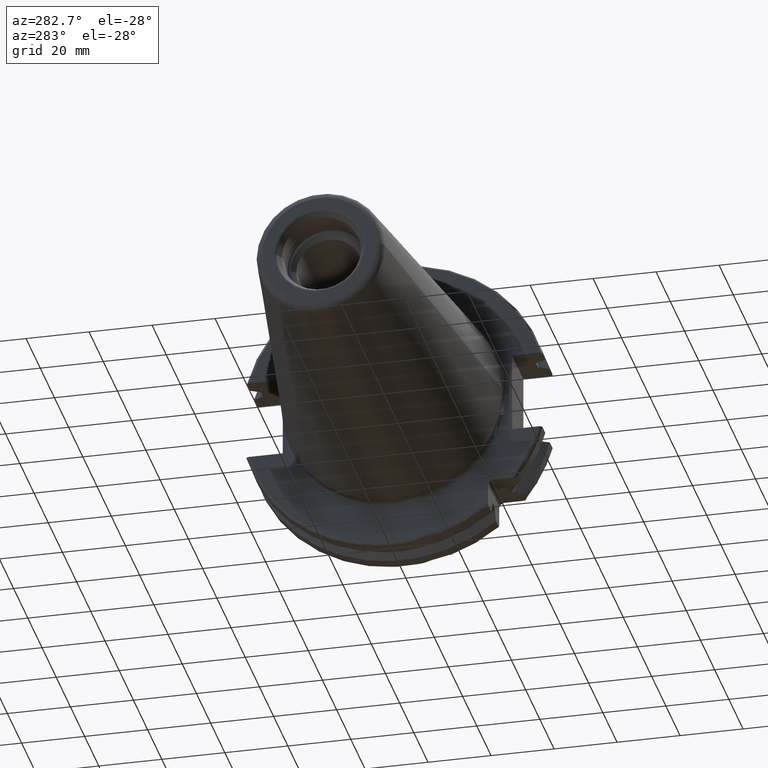
[diagram: clean part render]
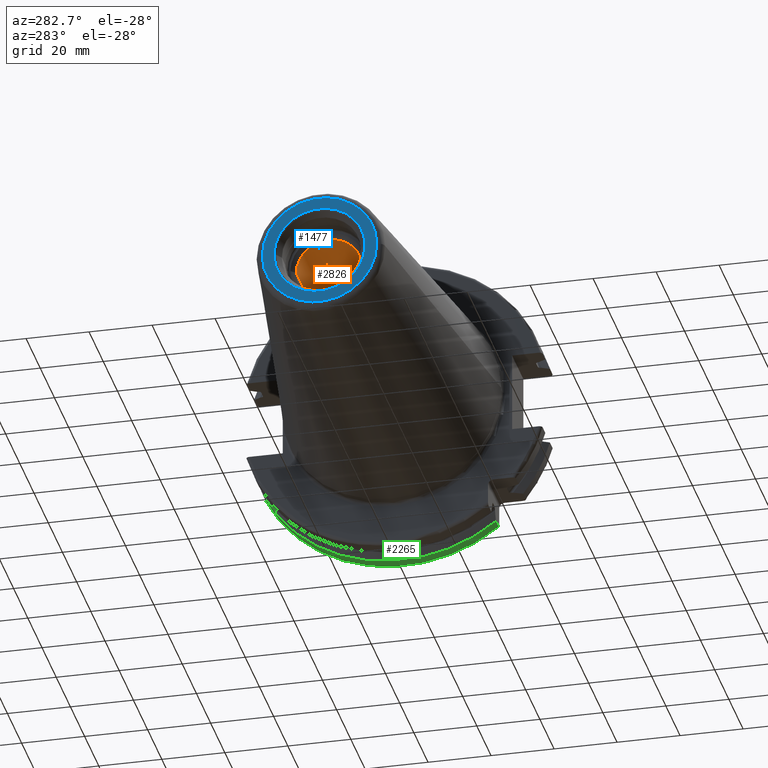
[diagram: same view with three faces highlighted in distinct colors, each labeled with its STEP entity id]
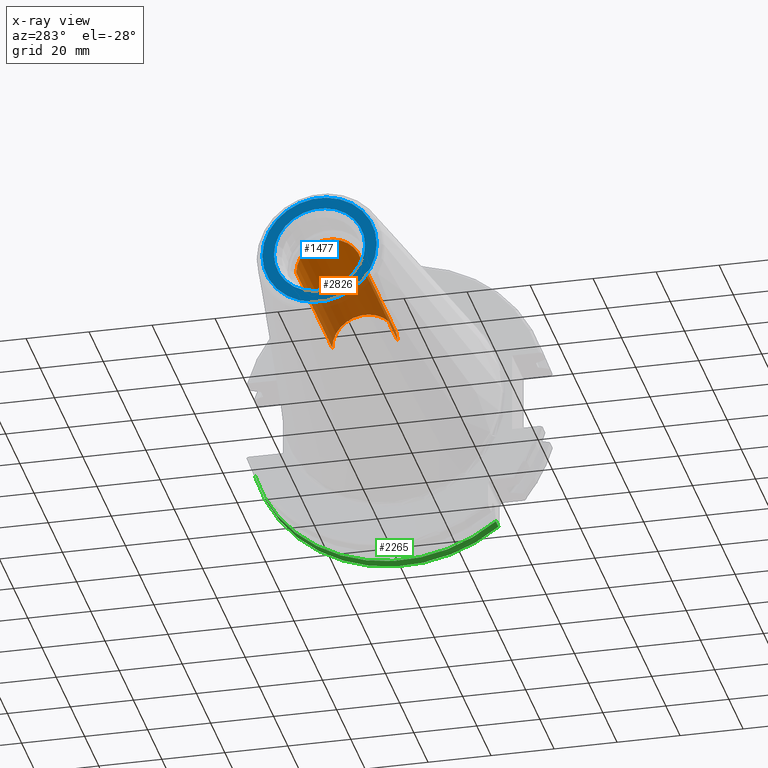
[diagram: x-ray of the same camera — body ghosted, the three highlighted faces saturated]
A machine part, auxiliary view with three faces highlighted in distinct colors.
The next image is the same camera in x-ray (body ghosted, the three faces saturated) — at least one of them is partly hidden behind the body in this view.
Their STEP definitions:

[orange] entity #2826 — the highlighted cylindrical surface (edge-blend (fillet) strip) has radius 10.375 mm, axis along (1, 0, 0).
#1162=CARTESIAN_POINT('',(-8.835E1,0.E0,0.E0));
#1163=DIRECTION('',(1.E0,0.E0,0.E0));
#1164=DIRECTION('',(0.E0,1.E0,0.E0));
#1165=AXIS2_PLACEMENT_3D('',#1162,#1163,#1164);
#1180=DIRECTION('',(-1.E0,0.E0,0.E0));
#1181=VECTOR('',#1180,5.075E1);
#1182=CARTESIAN_POINT('',(-3.76E1,1.0375E1,0.E0));
#1183=LINE('',#1182,#1181);
#1189=DIRECTION('',(-1.E0,0.E0,0.E0));
#1190=VECTOR('',#1189,5.075E1);
#1191=CARTESIAN_POINT('',(-3.76E1,-1.0375E1,0.E0));
#1192=LINE('',#1191,#1190);
#1193=CARTESIAN_POINT('',(-3.76E1,0.E0,0.E0));
#1194=DIRECTION('',(1.E0,0.E0,0.E0));
#1195=DIRECTION('',(0.E0,1.E0,0.E0));
#1196=AXIS2_PLACEMENT_3D('',#1193,#1194,#1195);
#1225=CARTESIAN_POINT('',(-3.76E1,1.0375E1,0.E0));
#1227=VERTEX_POINT('',#1225);
#1228=CARTESIAN_POINT('',(-8.835E1,1.0375E1,0.E0));
#1229=VERTEX_POINT('',#1228);
#1248=CARTESIAN_POINT('',(-3.76E1,-1.0375E1,0.E0));
#1249=VERTEX_POINT('',#1248);
#1250=CARTESIAN_POINT('',(-8.835E1,-1.0375E1,0.E0));
#1251=VERTEX_POINT('',#1250);
#2814=CARTESIAN_POINT('',(-1.051116964461E2,0.E0,0.E0));
#2815=DIRECTION('',(1.E0,0.E0,0.E0));
#2816=DIRECTION('',(0.E0,-1.E0,0.E0));
#2817=AXIS2_PLACEMENT_3D('',#2814,#2815,#2816);
#2818=CYLINDRICAL_SURFACE('',#2817,1.0375E1);
#2819=ORIENTED_EDGE('',*,*,#2804,.T.);
#2820=ORIENTED_EDGE('',*,*,#2781,.T.);
#2821=ORIENTED_EDGE('',*,*,#2808,.F.);
#2823=ORIENTED_EDGE('',*,*,#2822,.F.);
#2824=EDGE_LOOP('',(#2819,#2820,#2821,#2823));
#2825=FACE_OUTER_BOUND('',#2824,.F.);
#2826=ADVANCED_FACE('',(#2825),#2818,.F.);
#1166=CIRCLE('',#1165,1.0375E1);
#1197=CIRCLE('',#1196,1.0375E1);
#2781=EDGE_CURVE('',#1229,#1251,#1166,.T.);
#2804=EDGE_CURVE('',#1227,#1229,#1183,.T.);
#2808=EDGE_CURVE('',#1249,#1251,#1192,.T.);
#2822=EDGE_CURVE('',#1227,#1249,#1197,.T.);

[blue] entity #1477 — the highlighted planar face has unit normal (1, 0, 0).
#2=CARTESIAN_POINT('',(-1.016E2,0.E0,0.E0));
#3=DIRECTION('',(-1.E0,0.E0,0.E0));
#4=DIRECTION('',(0.E0,1.E0,0.E0));
#5=AXIS2_PLACEMENT_3D('',#2,#3,#4);
#7=CARTESIAN_POINT('',(-1.016E2,0.E0,0.E0));
#8=DIRECTION('',(1.E0,0.E0,0.E0));
#9=DIRECTION('',(0.E0,1.E0,0.E0));
#10=AXIS2_PLACEMENT_3D('',#7,#8,#9);
#12=CARTESIAN_POINT('',(-1.016E2,0.E0,0.E0));
#13=DIRECTION('',(1.E0,0.E0,0.E0));
#14=DIRECTION('',(0.E0,1.E0,0.E0));
#15=AXIS2_PLACEMENT_3D('',#12,#13,#14);
#17=CARTESIAN_POINT('',(-1.016E2,0.E0,0.E0));
#18=DIRECTION('',(1.E0,0.E0,0.E0));
#19=DIRECTION('',(0.E0,-1.E0,0.E0));
#20=AXIS2_PLACEMENT_3D('',#17,#18,#19);
#1207=CARTESIAN_POINT('',(-1.016E2,1.816144700117E1,0.E0));
#1209=VERTEX_POINT('',#1207);
#1211=CARTESIAN_POINT('',(-1.016E2,-1.816144700117E1,0.E0));
#1213=VERTEX_POINT('',#1211);
#1270=CARTESIAN_POINT('',(-1.016E2,1.446188021535E1,0.E0));
#1271=CARTESIAN_POINT('',(-1.016E2,-1.446188021535E1,0.E0));
#1272=VERTEX_POINT('',#1270);
#1273=VERTEX_POINT('',#1271);
#1460=CARTESIAN_POINT('',(-1.016E2,0.E0,0.E0));
#1461=DIRECTION('',(1.E0,0.E0,0.E0));
#1462=DIRECTION('',(0.E0,-1.E0,0.E0));
#1463=AXIS2_PLACEMENT_3D('',#1460,#1461,#1462);
#1464=PLANE('',#1463);
#1466=ORIENTED_EDGE('',*,*,#1465,.F.);
#1468=ORIENTED_EDGE('',*,*,#1467,.T.);
#1469=EDGE_LOOP('',(#1466,#1468));
#1470=FACE_OUTER_BOUND('',#1469,.F.);
#1472=ORIENTED_EDGE('',*,*,#1471,.F.);
#1474=ORIENTED_EDGE('',*,*,#1473,.F.);
#1475=EDGE_LOOP('',(#1472,#1474));
#1476=FACE_BOUND('',#1475,.F.);
#1477=ADVANCED_FACE('',(#1470,#1476),#1464,.F.);
#6=CIRCLE('',#5,1.816144700117E1);
#11=CIRCLE('',#10,1.816144700117E1);
#16=CIRCLE('',#15,1.446188021535E1);
#21=CIRCLE('',#20,1.446188021535E1);
#1465=EDGE_CURVE('',#1209,#1213,#6,.T.);
#1467=EDGE_CURVE('',#1209,#1213,#11,.T.);
#1471=EDGE_CURVE('',#1272,#1273,#16,.T.);
#1473=EDGE_CURVE('',#1273,#1272,#21,.T.);

[green] entity #2265 — the highlighted cylindrical surface (partial cylindrical patch) has radius 48.7375 mm, axis along (1, 0, 0).
#736=DIRECTION('',(1.E0,0.E0,0.E0));
#737=VECTOR('',#736,3.634621614173E0);
#738=CARTESIAN_POINT('',(1.441537838583E1,4.699929686974E1,-1.29E1));
#739=LINE('',#738,#737);
#740=CARTESIAN_POINT('',(1.441537838583E1,0.E0,0.E0));
#741=DIRECTION('',(1.E0,0.E0,0.E0));
#742=DIRECTION('',(0.E0,-6.124647345473E-1,-7.904979120376E-1));
#743=AXIS2_PLACEMENT_3D('',#740,#741,#742);
#745=DIRECTION('',(1.E0,0.E0,0.E0));
#746=VECTOR('',#745,3.634621614173E0);
#747=CARTESIAN_POINT('',(1.441537838583E1,-2.985E1,-3.852689198793E1));
#748=LINE('',#747,#746);
#749=CARTESIAN_POINT('',(1.805E1,0.E0,0.E0));
#750=DIRECTION('',(-1.E0,0.E0,0.E0));
#751=DIRECTION('',(0.E0,9.643354064066E-1,-2.646832521159E-1));
#752=AXIS2_PLACEMENT_3D('',#749,#750,#751);
#790=CARTESIAN_POINT('',(1.441537838583E1,4.699929686974E1,-1.29E1));
#802=CARTESIAN_POINT('',(1.441537838583E1,-2.985E1,-3.852689198793E1));
#1324=VERTEX_POINT('',#790);
#1374=CARTESIAN_POINT('',(1.805E1,4.699929686974E1,-1.29E1));
#1375=VERTEX_POINT('',#1374);
#1399=CARTESIAN_POINT('',(1.805E1,-2.985E1,-3.852689198793E1));
#1400=VERTEX_POINT('',#1399);
#1424=VERTEX_POINT('',#802);
#2252=CARTESIAN_POINT('',(-1.076325E2,0.E0,0.E0));
#2253=DIRECTION('',(1.E0,0.E0,0.E0));
#2254=DIRECTION('',(0.E0,-1.E0,0.E0));
#2255=AXIS2_PLACEMENT_3D('',#2252,#2253,#2254);
#2256=CYLINDRICAL_SURFACE('',#2255,4.87375E1);
#2257=ORIENTED_EDGE('',*,*,#1825,.F.);
#2259=ORIENTED_EDGE('',*,*,#2258,.F.);
#2260=ORIENTED_EDGE('',*,*,#1675,.T.);
#2262=ORIENTED_EDGE('',*,*,#2261,.F.);
#2263=EDGE_LOOP('',(#2257,#2259,#2260,#2262));
#2264=FACE_OUTER_BOUND('',#2263,.F.);
#2265=ADVANCED_FACE('',(#2264),#2256,.T.);
#744=CIRCLE('',#743,4.87375E1);
#753=CIRCLE('',#752,4.87375E1);
#1675=EDGE_CURVE('',#1424,#1400,#748,.T.);
#1825=EDGE_CURVE('',#1324,#1375,#739,.T.);
#2258=EDGE_CURVE('',#1424,#1324,#744,.T.);
#2261=EDGE_CURVE('',#1375,#1400,#753,.T.);